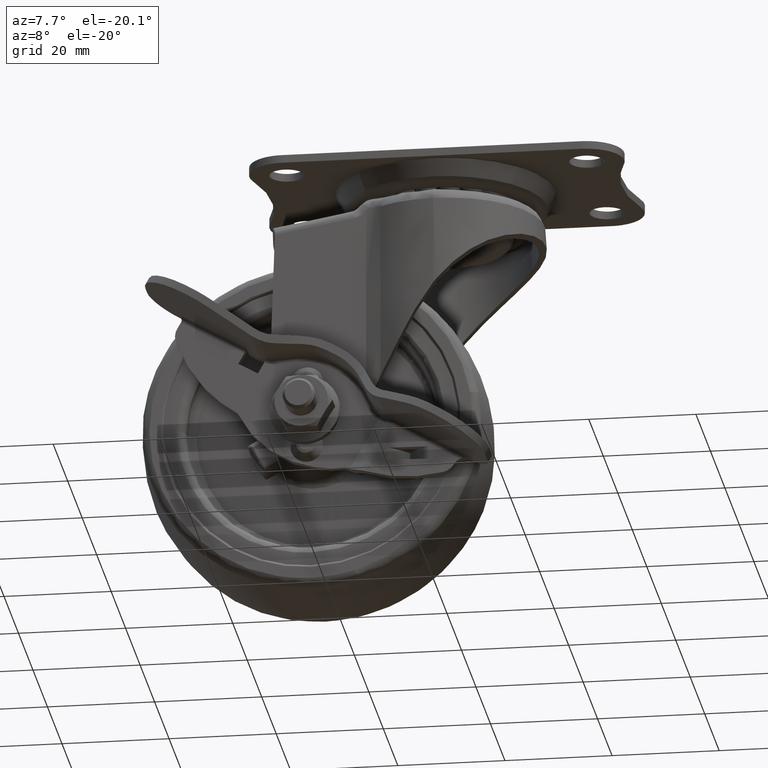
[diagram: clean part render]
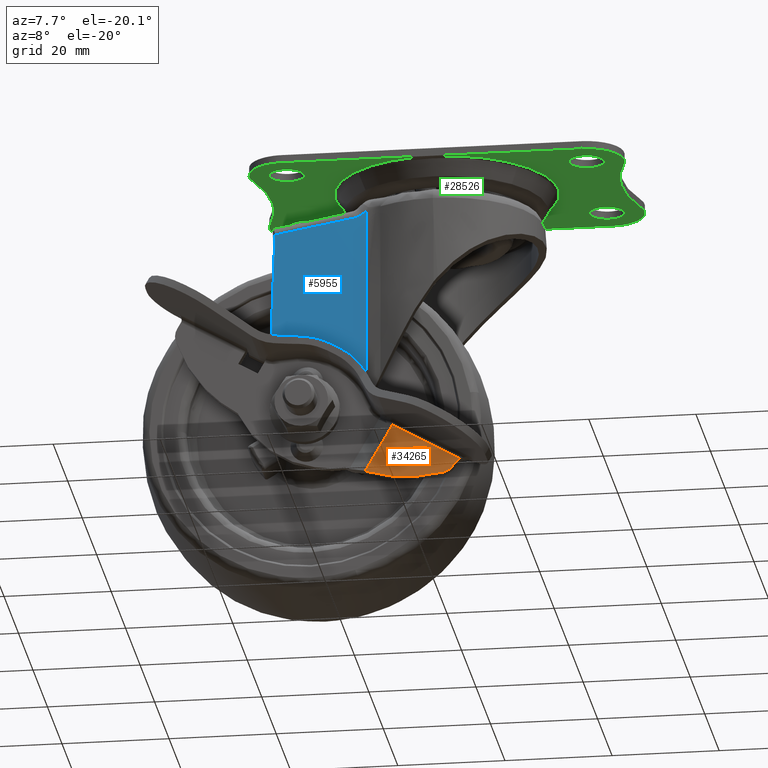
[diagram: same view with three faces highlighted in distinct colors, each labeled with its STEP entity id]
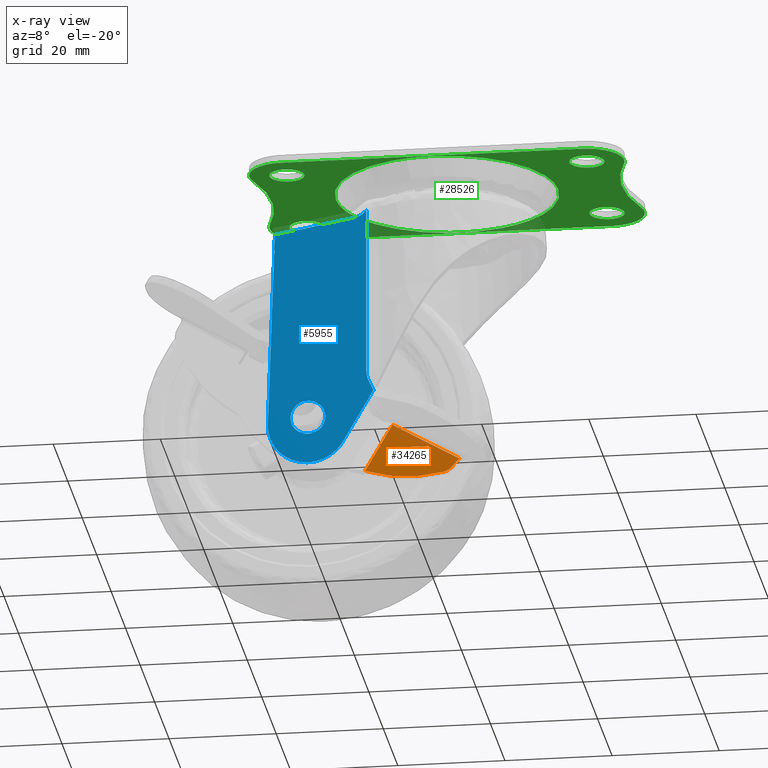
[diagram: x-ray of the same camera — body ghosted, the three highlighted faces saturated]
A machine part, auxiliary view with three faces highlighted in distinct colors.
The next image is the same camera in x-ray (body ghosted, the three faces saturated) — at least one of them is partly hidden behind the body in this view.
Their STEP definitions:

[orange] entity #34265 — the highlighted face is a freeform B-spline surface patch.
#31590=CARTESIAN_POINT('',(-3.760554572550980,-18.200001000000050,-37.886882688781149));
#31591=VERTEX_POINT('',#31590);
#31602=CARTESIAN_POINT('',(-2.585290771482475,-18.200001000000050,-39.979433434913901));
#31603=VERTEX_POINT('',#31602);
#31604=CARTESIAN_POINT('',(-2.585290771482475,-18.200001000000050,-39.979433434913901));
#31605=CARTESIAN_POINT('',(-3.760554572550980,-18.200001000000050,-37.886882688781149));
#31606=QUASI_UNIFORM_CURVE('',1,(#31604,#31605),.UNSPECIFIED.,.F.,.U.);
#31607=EDGE_CURVE('',#31603,#31591,#31606,.T.);
#31643=CARTESIAN_POINT('',(3.110047271129015,-18.200001000000050,-34.028066049158546));
#31644=VERTEX_POINT('',#31643);
#31660=CARTESIAN_POINT('',(4.285310611342440,-18.200001000000050,-36.120615974741447));
#31661=VERTEX_POINT('',#31660);
#31670=CARTESIAN_POINT('',(3.110047271129015,-18.200001000000050,-34.028066049158546));
#31671=CARTESIAN_POINT('',(4.285310611342440,-18.200001000000050,-36.120615974741447));
#31672=QUASI_UNIFORM_CURVE('',1,(#31670,#31671),.UNSPECIFIED.,.F.,.U.);
#31673=EDGE_CURVE('',#31644,#31661,#31672,.T.);
#31784=CARTESIAN_POINT('',(-5.099997016335720,-18.200001000000050,-33.500016200391762));
#31785=VERTEX_POINT('',#31784);
#31841=CARTESIAN_POINT('',(-5.099997016335720,-18.200001000000050,-43.723593691209487));
#31842=VERTEX_POINT('',#31841);
#31853=CARTESIAN_POINT('',(-5.099997016335720,-18.200001000000050,-33.500016200391762));
#31854=CARTESIAN_POINT('',(-5.099997016335720,-18.200001000000050,-43.723593691209487));
#31855=QUASI_UNIFORM_CURVE('',1,(#31853,#31854),.UNSPECIFIED.,.F.,.U.);
#31856=EDGE_CURVE('',#31785,#31842,#31855,.T.);
#31949=CARTESIAN_POINT('',(9.500011608893679,-18.200000999999951,-33.500043960416249));
#31950=VERTEX_POINT('',#31949);
#31951=CARTESIAN_POINT('',(9.500011608893679,-18.200000999999951,-33.500043960416249));
#31952=CARTESIAN_POINT('',(-5.099997016335720,-18.200001000000050,-33.500016200391762));
#31953=QUASI_UNIFORM_CURVE('',1,(#31951,#31952),.UNSPECIFIED.,.F.,.U.);
#31954=EDGE_CURVE('',#31950,#31785,#31953,.T.);
#32862=CARTESIAN_POINT('',(9.000099699842162,-18.200001000000050,-34.978723908718749));
#32863=VERTEX_POINT('',#32862);
#32864=CARTESIAN_POINT('',(9.000099699842162,-18.200001000000050,-34.978723908718749));
#32865=CARTESIAN_POINT('',(9.001881380710193,-18.200001000000011,-34.763765464275430));
#32866=CARTESIAN_POINT('',(9.075090063611201,-18.200000999999919,-34.235234355348801));
#32867=CARTESIAN_POINT('',(9.311214726225023,-18.200000999999929,-33.751240275202257));
#32868=CARTESIAN_POINT('',(9.500011608893679,-18.200000999999951,-33.500043960416249));
#32869=B_SPLINE_CURVE_WITH_KNOTS('',3,(#32864,#32865,#32866,#32867,#32868),.UNSPECIFIED.,.F.,.U.,(4,1,4),(0.000000038030307,0.644908400968077,1.587459451626553),.UNSPECIFIED.);
#32870=EDGE_CURVE('',#32863,#31950,#32869,.T.);
#33532=CARTESIAN_POINT('',(8.018981607633881,-18.200001000000050,-37.172269456478951));
#33533=VERTEX_POINT('',#33532);
#33539=CARTESIAN_POINT('',(-5.099997016335720,-18.200001000000050,-43.723593691209487));
#33540=CARTESIAN_POINT('',(-4.112255990179443,-18.200001000000071,-43.535533027594042));
#33541=CARTESIAN_POINT('',(-1.631563796275703,-18.200001000000061,-42.918022641952668));
#33542=CARTESIAN_POINT('',(1.748905572819824,-18.200001000000121,-41.545046553451577));
#33543=CARTESIAN_POINT('',(5.154651901472310,-18.200001000000078,-39.540696212099057));
#33544=CARTESIAN_POINT('',(7.046402674110341,-18.200001000000078,-38.057133756000127));
#33545=CARTESIAN_POINT('',(8.018981607633881,-18.200001000000050,-37.172269456478951));
#33546=B_SPLINE_CURVE_WITH_KNOTS('',3,(#33539,#33540,#33541,#33542,#33543,#33544,#33545),.UNSPECIFIED.,.F.,.U.,(4,1,1,1,4),(4.931676E-009,3.016472451849115,7.657200474243243,10.905715521691510,14.850336306112579),.UNSPECIFIED.);
#33547=EDGE_CURVE('',#31842,#33533,#33546,.T.);
#33600=CARTESIAN_POINT('',(8.018981607633881,-18.200001000000050,-37.172269456478951));
#33601=CARTESIAN_POINT('',(8.266803752465545,-18.200001000000061,-36.947111580387350));
#33602=CARTESIAN_POINT('',(8.605005679874410,-18.200001000000089,-36.515432134636377));
#33603=CARTESIAN_POINT('',(8.923662425377994,-18.200001000000121,-35.750650303717457));
#33604=CARTESIAN_POINT('',(8.997792402454531,-18.200001000000061,-35.262015585171177));
#33605=CARTESIAN_POINT('',(9.000099699842162,-18.200001000000050,-34.978723908718749));
#33606=B_SPLINE_CURVE_WITH_KNOTS('',3,(#33600,#33601,#33602,#33603,#33604,#33605),.UNSPECIFIED.,.F.,.U.,(4,1,1,4),(0.000000041465652,1.004425111143239,1.622505027469119,2.472403478058530),.UNSPECIFIED.);
#33607=EDGE_CURVE('',#33533,#32863,#33606,.T.);
#34239=CARTESIAN_POINT('',(-5.829267555922717,-18.200000999999951,-44.234262459274298));
#34240=CARTESIAN_POINT('',(10.229282409549169,-18.200000999999951,-44.234262459274291));
#34241=CARTESIAN_POINT('',(-5.829267555922717,-18.200000999999951,-32.989347432326952));
#34242=CARTESIAN_POINT('',(10.229282409549169,-18.200000999999951,-32.989347432326952));
#34243=B_SPLINE_SURFACE_WITH_KNOTS('',1,1,((#34239,#34241),(#34240,#34242)),.UNSPECIFIED.,.F.,.F.,.U.,(2,2),(2,2),(0.0,16.058549965471890),(0.0,11.244915026947350),.UNSPECIFIED.);
#34244=ORIENTED_EDGE('',*,*,#31954,.T.);
#34245=ORIENTED_EDGE('',*,*,#31856,.T.);
#34246=ORIENTED_EDGE('',*,*,#33547,.T.);
#34247=ORIENTED_EDGE('',*,*,#33607,.T.);
#34248=ORIENTED_EDGE('',*,*,#32870,.T.);
#34249=EDGE_LOOP('',(#34244,#34245,#34246,#34247,#34248));
#34250=FACE_OUTER_BOUND('',#34249,.T.);
#34251=CARTESIAN_POINT('',(4.285310611342440,-18.200001000000050,-36.120615974741447));
#34252=CARTESIAN_POINT('',(-2.585290771482475,-18.200001000000050,-39.979433434913901));
#34253=QUASI_UNIFORM_CURVE('',1,(#34251,#34252),.UNSPECIFIED.,.F.,.U.);
#34254=EDGE_CURVE('',#31661,#31603,#34253,.T.);
#34255=ORIENTED_EDGE('',*,*,#34254,.T.);
#34256=ORIENTED_EDGE('',*,*,#31607,.T.);
#34257=CARTESIAN_POINT('',(-3.760554572550980,-18.200001000000050,-37.886882688781149));
#34258=CARTESIAN_POINT('',(3.110047271129015,-18.200001000000050,-34.028066049158546));
#34259=QUASI_UNIFORM_CURVE('',1,(#34257,#34258),.UNSPECIFIED.,.F.,.U.);
#34260=EDGE_CURVE('',#31591,#31644,#34259,.T.);
#34261=ORIENTED_EDGE('',*,*,#34260,.T.);
#34262=ORIENTED_EDGE('',*,*,#31673,.T.);
#34263=EDGE_LOOP('',(#34255,#34256,#34261,#34262));
#34264=FACE_BOUND('',#34263,.T.);
#34265=ADVANCED_FACE('',(#34250,#34264),#34243,.T.);

[blue] entity #5955 — the highlighted face is a freeform B-spline surface patch.
#957=CARTESIAN_POINT('',(-26.481556282979462,-14.500014999999980,-50.098657886526567));
#958=VERTEX_POINT('',#957);
#964=CARTESIAN_POINT('',(-24.0,-14.500014999999980,-51.249996000000003));
#965=VERTEX_POINT('',#964);
#966=CARTESIAN_POINT('',(-26.481556282979462,-14.500014999999980,-50.098657886526567));
#967=CARTESIAN_POINT('',(-26.320154426087701,-14.500014999999980,-50.289590358454717));
#968=CARTESIAN_POINT('',(-25.963778621621010,-14.500014999999991,-50.623748461309610));
#969=CARTESIAN_POINT('',(-25.363702867746671,-14.500014999999950,-50.974916260311247));
#970=CARTESIAN_POINT('',(-24.705887258085131,-14.500015000000070,-51.197121211428289));
#971=CARTESIAN_POINT('',(-24.250012487659660,-14.500014999999950,-51.250049129720679));
#972=CARTESIAN_POINT('',(-24.0,-14.500014999999980,-51.249996000000003));
#973=B_SPLINE_CURVE_WITH_KNOTS('',3,(#966,#967,#968,#969,#970,#971,#972),.UNSPECIFIED.,.F.,.U.,(4,1,1,1,4),(0.000000054430266,0.750026367810561,1.455906118027910,2.073600946871237,2.823627260252643),.UNSPECIFIED.);
#974=EDGE_CURVE('',#958,#965,#973,.T.);
#976=CARTESIAN_POINT('',(-20.750000000000650,-14.500014999999980,-47.999993940924647));
#977=VERTEX_POINT('',#976);
#978=CARTESIAN_POINT('',(-24.0,-14.500014999999980,-51.249996000000003));
#979=CARTESIAN_POINT('',(-23.654317310903071,-14.500014999999969,-51.250181567235160));
#980=CARTESIAN_POINT('',(-23.149252670513778,-14.500015000000010,-51.168624221916723));
#981=CARTESIAN_POINT('',(-22.484196317878428,-14.500014999999980,-50.893076814369977));
#982=CARTESIAN_POINT('',(-21.987597435861300,-14.500014999999969,-50.578639095731042));
#983=CARTESIAN_POINT('',(-21.523209675265619,-14.500014999999999,-50.136497120728947));
#984=CARTESIAN_POINT('',(-21.153993051802381,-14.500014999999991,-49.612249615428837));
#985=CARTESIAN_POINT('',(-20.839955919817999,-14.500014999999941,-48.903916845198239));
#986=CARTESIAN_POINT('',(-20.749810958580401,-14.500015000000040,-48.345675169019437));
#987=CARTESIAN_POINT('',(-20.750000000000650,-14.500014999999980,-47.999993940924647));
#988=B_SPLINE_CURVE_WITH_KNOTS('',3,(#978,#979,#980,#981,#982,#983,#984,#985,#986,#987),.UNSPECIFIED.,.F.,.U.,(4,1,1,1,1,1,1,4),(0.000000087007408,1.036990390061083,1.515618405325739,2.153791847225644,2.791894887794724,3.430051775340033,4.068227027378323,5.105217329646182),.UNSPECIFIED.);
#989=EDGE_CURVE('',#965,#977,#988,.T.);
#991=CARTESIAN_POINT('',(-24.0,-14.500014999999980,-44.749996000000003));
#992=VERTEX_POINT('',#991);
#993=CARTESIAN_POINT('',(-20.750000000000650,-14.500014999999980,-47.999993940924647));
#994=CARTESIAN_POINT('',(-20.749816144876579,-14.500014999999991,-47.654311261816282));
#995=CARTESIAN_POINT('',(-20.831367591349991,-14.500014999999980,-47.149247552117757));
#996=CARTESIAN_POINT('',(-21.106922344042530,-14.500014999999980,-46.484192228192242));
#997=CARTESIAN_POINT('',(-21.449918194975819,-14.500014999999969,-45.942430177033792));
#998=CARTESIAN_POINT('',(-21.942427339657382,-14.500014999999980,-45.449903996963599));
#999=CARTESIAN_POINT('',(-22.484200371084249,-14.500014999999969,-45.106918996288989));
#1000=CARTESIAN_POINT('',(-23.149252329922920,-14.500015000000030,-44.831365175613627));
#1001=CARTESIAN_POINT('',(-23.654317598750659,-14.500014999999911,-44.749810783598562));
#1002=CARTESIAN_POINT('',(-24.0,-14.500014999999980,-44.749996000000003));
#1003=B_SPLINE_CURVE_WITH_KNOTS('',3,(#993,#994,#995,#996,#997,#998,#999,#1000,#1001,#1002),.UNSPECIFIED.,.F.,.U.,(4,1,1,1,1,1,1,4),(0.000000089823271,1.036989920741094,1.515617718207091,2.153790871378807,2.951424228293317,3.589597379243464,4.068225176827021,5.105215008530512),.UNSPECIFIED.);
#1004=EDGE_CURVE('',#977,#992,#1003,.T.);
#1006=CARTESIAN_POINT('',(-26.237152122917330,-14.500014999999980,-45.642529767471018));
#1007=VERTEX_POINT('',#1006);
#1008=CARTESIAN_POINT('',(-24.0,-14.500014999999980,-44.749996000000003));
#1009=CARTESIAN_POINT('',(-24.282738987557750,-14.500015000000010,-44.749909579737128));
#1010=CARTESIAN_POINT('',(-24.771042234328831,-14.500014999999960,-44.814146022829512));
#1011=CARTESIAN_POINT('',(-25.545490132232182,-14.500014999999999,-45.101984316922383));
#1012=CARTESIAN_POINT('',(-25.994875320110879,-14.500014999999980,-45.412387990954549));
#1013=CARTESIAN_POINT('',(-26.237152122917330,-14.500014999999980,-45.642529767471018));
#1014=B_SPLINE_CURVE_WITH_KNOTS('',3,(#1008,#1009,#1010,#1011,#1012,#1013),.UNSPECIFIED.,.F.,.U.,(4,1,1,4),(0.000000029991697,0.848217283191369,1.465078735277704,2.467517040331371),.UNSPECIFIED.);
#1015=EDGE_CURVE('',#992,#1007,#1014,.T.);
#1100=CARTESIAN_POINT('',(-27.249999999999350,-14.500014999999980,-47.999998059075352));
#1101=VERTEX_POINT('',#1100);
#1102=CARTESIAN_POINT('',(-26.237152122917330,-14.500014999999980,-45.642529767471018));
#1103=CARTESIAN_POINT('',(-26.536455061760510,-14.500014999999980,-45.925966070307972));
#1104=CARTESIAN_POINT('',(-26.877854871078750,-14.500014999999980,-46.403932006178991));
#1105=CARTESIAN_POINT('',(-27.184340524074340,-14.500014999999980,-47.230755634806918));
#1106=CARTESIAN_POINT('',(-27.250110224429989,-14.500014999999980,-47.697754378889648));
#1107=CARTESIAN_POINT('',(-27.249999999999350,-14.500014999999980,-47.999998059075352));
#1108=B_SPLINE_CURVE_WITH_KNOTS('',3,(#1102,#1103,#1104,#1105,#1106,#1107),.UNSPECIFIED.,.F.,.U.,(4,1,1,4),(0.000000023110423,1.236422972832260,1.730991075560883,2.637701209817986),.UNSPECIFIED.);
#1109=EDGE_CURVE('',#1007,#1101,#1108,.T.);
#1111=CARTESIAN_POINT('',(-27.249999999999350,-14.500014999999980,-47.999998059075352));
#1112=CARTESIAN_POINT('',(-27.250022193682110,-14.500015000000010,-48.213887924088027));
#1113=CARTESIAN_POINT('',(-27.205277126840279,-14.500014999999960,-48.665420440297780));
#1114=CARTESIAN_POINT('',(-26.974042200133400,-14.500014999999999,-49.394721125264702));
#1115=CARTESIAN_POINT('',(-26.681142727658351,-14.500015000000010,-49.862813449055402));
#1116=CARTESIAN_POINT('',(-26.481556282979462,-14.500014999999980,-50.098657886526567));
#1117=B_SPLINE_CURVE_WITH_KNOTS('',3,(#1111,#1112,#1113,#1114,#1115,#1116),.UNSPECIFIED.,.F.,.U.,(4,1,1,4),(0.000000032594063,0.641680271935226,1.354643086648391,2.281526560046827),.UNSPECIFIED.);
#1118=EDGE_CURVE('',#1101,#958,#1117,.T.);
#3343=CARTESIAN_POINT('',(-11.764897919061660,-14.500014999999960,-43.230867202212352));
#3344=VERTEX_POINT('',#3343);
#3377=CARTESIAN_POINT('',(-13.114845407450700,-14.500014999999960,-7.772795096158631));
#3378=VERTEX_POINT('',#3377);
#3387=CARTESIAN_POINT('',(-11.764897919061660,-14.500014999999960,-43.230867202212352));
#3388=CARTESIAN_POINT('',(-12.498000517984250,-14.500014999999960,-41.887876217250103));
#3389=CARTESIAN_POINT('',(-12.796686992577699,-14.500014999999960,-41.014267411885072));
#3390=CARTESIAN_POINT('',(-12.997251107979700,-14.500014999999960,-40.427650366389962));
#3391=CARTESIAN_POINT('',(-13.068918839977350,-14.500014999999960,-39.906218334693989));
#3392=CARTESIAN_POINT('',(-13.114845407450700,-14.500014999999960,-39.572070975499983));
#3393=CARTESIAN_POINT('',(-13.114845407450700,-14.500014999999960,-38.798169257503012));
#3394=CARTESIAN_POINT('',(-13.114845407450700,-14.500014999999960,-36.582071103121059));
#3395=CARTESIAN_POINT('',(-13.114845407450700,-14.500014999999960,-34.365972948739113));
#3396=CARTESIAN_POINT('',(-13.114845407450700,-14.500014999999960,-29.933776639975989));
#3397=CARTESIAN_POINT('',(-13.114845407450700,-14.500014999999960,-25.501580331212971));
#3398=CARTESIAN_POINT('',(-13.114845407450700,-14.500014999999960,-16.637187713686050));
#3399=CARTESIAN_POINT('',(-13.114845407450700,-14.500014999999960,-7.772795096158631));
#3400=B_SPLINE_CURVE_WITH_KNOTS('',2,(#3387,#3388,#3389,#3390,#3391,#3392,#3393,#3394,#3395,#3396,#3397,#3398,#3399),.UNSPECIFIED.,.F.,.U.,(3,2,2,2,2,2,3),(0.0,0.062500000000000,0.093750000000000,0.125000000000000,0.250000000000000,0.500000000000000,1.0),.UNSPECIFIED.);
#3401=EDGE_CURVE('',#3344,#3378,#3400,.T.);
#3887=CARTESIAN_POINT('',(-15.450099921824849,-14.500014999999960,-9.175366209909820));
#3888=VERTEX_POINT('',#3887);
#3933=CARTESIAN_POINT('',(-30.168149422949352,-14.500014999999999,-11.770554114201261));
#3934=VERTEX_POINT('',#3933);
#3942=CARTESIAN_POINT('',(-15.450099921824849,-14.500014999999960,-9.175366209909820));
#3943=CARTESIAN_POINT('',(-30.168149422949352,-14.500014999999999,-11.770554114201261));
#3944=QUASI_UNIFORM_CURVE('',1,(#3942,#3943),.UNSPECIFIED.,.F.,.U.);
#3945=EDGE_CURVE('',#3888,#3934,#3944,.T.);
#4008=CARTESIAN_POINT('',(-13.444378099345860,-14.500014999999960,-8.120697380074811));
#4009=VERTEX_POINT('',#4008);
#4034=CARTESIAN_POINT('',(-13.444378099345860,-14.500014999999960,-8.120697380074800));
#4035=CARTESIAN_POINT('',(-13.577538275317741,-14.500014999999960,-8.261655065152787));
#4036=CARTESIAN_POINT('',(-13.721810046412710,-14.500014999999960,-8.388276476710161));
#4037=CARTESIAN_POINT('',(-13.952577617743060,-14.500014999999960,-8.559681311291788));
#4038=CARTESIAN_POINT('',(-14.031920859920669,-14.500014999999960,-8.613693024903693));
#4039=CARTESIAN_POINT('',(-14.195333000297721,-14.500014999999969,-8.715619370966547));
#4040=CARTESIAN_POINT('',(-14.279730269917451,-14.500014999999960,-8.763682929964197));
#4041=CARTESIAN_POINT('',(-14.536187889577260,-14.500014999999960,-8.896791213018165));
#4042=CARTESIAN_POINT('',(-14.712199930313650,-14.500014999999960,-8.971436871829113));
#4043=CARTESIAN_POINT('',(-15.073813551437739,-14.500014999999960,-9.093914821171241));
#4044=CARTESIAN_POINT('',(-15.259416394751060,-14.500014999999960,-9.141743580428710));
#4045=CARTESIAN_POINT('',(-15.450099921824849,-14.500014999999960,-9.175366209909820));
#4046=B_SPLINE_CURVE_WITH_KNOTS('',3,(#4034,#4035,#4036,#4037,#4038,#4039,#4040,#4041,#4042,#4043,#4044,#4045),.UNSPECIFIED.,.F.,.U.,(4,2,2,2,2,4),(0.0,0.249999999999999,0.374999999999998,0.499999999999998,0.749999999999999,1.0),.UNSPECIFIED.);
#4047=EDGE_CURVE('',#4009,#3888,#4046,.T.);
#4100=CARTESIAN_POINT('',(-13.114845407450700,-14.500014999999960,-7.772795096158631));
#4101=CARTESIAN_POINT('',(-13.444378099345860,-14.500014999999960,-8.120697380074811));
#4102=QUASI_UNIFORM_CURVE('',1,(#4100,#4101),.UNSPECIFIED.,.F.,.U.);
#4103=EDGE_CURVE('',#3378,#4009,#4102,.T.);
#5573=CARTESIAN_POINT('',(-30.655919629697049,-14.500014999999999,-25.503042144820650));
#5574=VERTEX_POINT('',#5573);
#5582=CARTESIAN_POINT('',(-30.168149422949352,-14.500014999999999,-11.770554114201261));
#5583=CARTESIAN_POINT('',(-30.655919629697049,-14.500014999999999,-25.503042144820650));
#5584=QUASI_UNIFORM_CURVE('',1,(#5582,#5583),.UNSPECIFIED.,.F.,.U.);
#5585=EDGE_CURVE('',#3934,#5574,#5584,.T.);
#5597=CARTESIAN_POINT('',(-31.495273444506651,-14.500014999999980,-49.133772546533599));
#5598=VERTEX_POINT('',#5597);
#5604=CARTESIAN_POINT('',(-31.495273444506651,-14.500014999999980,-49.133772546533599));
#5605=CARTESIAN_POINT('',(-30.655919629697049,-14.500014999999999,-25.503042144820650));
#5606=QUASI_UNIFORM_CURVE('',1,(#5604,#5605),.UNSPECIFIED.,.F.,.U.);
#5607=EDGE_CURVE('',#5598,#5574,#5606,.T.);
#5631=CARTESIAN_POINT('',(-17.508530000000000,-14.500014999999980,-53.156421999999900));
#5632=VERTEX_POINT('',#5631);
#5638=CARTESIAN_POINT('',(-31.495273444506651,-14.500014999999980,-49.133772546533599));
#5639=CARTESIAN_POINT('',(-31.516526762908239,-14.500014999999991,-49.729171122618801));
#5640=CARTESIAN_POINT('',(-31.411816223449360,-14.500014999999980,-50.977025731513031));
#5641=CARTESIAN_POINT('',(-30.874983789924510,-14.500014999999930,-52.532611634222711));
#5642=CARTESIAN_POINT('',(-30.207378661966811,-14.500014999999999,-53.647071242222232));
#5643=CARTESIAN_POINT('',(-29.483443755917879,-14.500015000000030,-54.562669686190972));
#5644=CARTESIAN_POINT('',(-28.431896029399510,-14.500014999999911,-55.535292122472853));
#5645=CARTESIAN_POINT('',(-26.952730111761351,-14.500015000000079,-56.368831997620788));
#5646=CARTESIAN_POINT('',(-25.400926833545540,-14.500015000000079,-56.814978445087640));
#5647=CARTESIAN_POINT('',(-23.924505952746390,-14.500014999999941,-56.945773920667790));
#5648=CARTESIAN_POINT('',(-22.292485806831841,-14.500015000000030,-56.776731172832868));
#5649=CARTESIAN_POINT('',(-20.740902390223422,-14.500014999999900,-56.225040202859660));
#5650=CARTESIAN_POINT('',(-19.510621672867831,-14.500015000000101,-55.445852557233408));
#5651=CARTESIAN_POINT('',(-18.436907104593210,-14.500014999999800,-54.504524961598733));
#5652=CARTESIAN_POINT('',(-17.832704310828760,-14.500015000000269,-53.717049543102817));
#5653=CARTESIAN_POINT('',(-17.508530000000000,-14.500014999999980,-53.156421999999900));
#5654=B_SPLINE_CURVE_WITH_KNOTS('',3,(#5638,#5639,#5640,#5641,#5642,#5643,#5644,#5645,#5646,#5647,#5648,#5649,#5650,#5651,#5652,#5653),.UNSPECIFIED.,.F.,.U.,(4,1,1,1,1,1,1,1,1,1,1,1,1,4),(0.000000317317522,1.787336795637835,3.730106194921387,4.895765357087813,5.672876977997552,7.227099398005390,9.169915391078970,10.723983290883060,12.045129718919121,13.599340933154730,15.619831194081939,16.940913000130578,17.951155109491310,19.893896527020519),.UNSPECIFIED.);
#5655=EDGE_CURVE('',#5598,#5632,#5654,.T.);
#5928=CARTESIAN_POINT('',(-32.480805778485220,-14.500014999999960,-5.318932147878094));
#5929=CARTESIAN_POINT('',(-32.480805778485220,-14.500014999999960,-59.353046619308472));
#5930=CARTESIAN_POINT('',(-10.779366643502909,-14.500014999999960,-5.318932147878094));
#5931=CARTESIAN_POINT('',(-10.779366643502909,-14.500014999999960,-59.353046619308472));
#5932=B_SPLINE_SURFACE_WITH_KNOTS('',1,1,((#5928,#5930),(#5929,#5931)),.UNSPECIFIED.,.F.,.F.,.U.,(2,2),(2,2),(0.0,54.034114471430371),(0.0,21.701439134982309),.UNSPECIFIED.);
#5933=CARTESIAN_POINT('',(-11.764897919061660,-14.500014999999960,-43.230867202212352));
#5934=CARTESIAN_POINT('',(-17.508530000000000,-14.500014999999980,-53.156421999999900));
#5935=QUASI_UNIFORM_CURVE('',1,(#5933,#5934),.UNSPECIFIED.,.F.,.U.);
#5936=EDGE_CURVE('',#3344,#5632,#5935,.T.);
#5937=ORIENTED_EDGE('',*,*,#5936,.F.);
#5938=ORIENTED_EDGE('',*,*,#3401,.T.);
#5939=ORIENTED_EDGE('',*,*,#4103,.T.);
#5940=ORIENTED_EDGE('',*,*,#4047,.T.);
#5941=ORIENTED_EDGE('',*,*,#3945,.T.);
#5942=ORIENTED_EDGE('',*,*,#5585,.T.);
#5943=ORIENTED_EDGE('',*,*,#5607,.F.);
#5944=ORIENTED_EDGE('',*,*,#5655,.T.);
#5945=EDGE_LOOP('',(#5937,#5938,#5939,#5940,#5941,#5942,#5943,#5944));
#5946=FACE_OUTER_BOUND('',#5945,.T.);
#5947=ORIENTED_EDGE('',*,*,#989,.F.);
#5948=ORIENTED_EDGE('',*,*,#974,.F.);
#5949=ORIENTED_EDGE('',*,*,#1118,.F.);
#5950=ORIENTED_EDGE('',*,*,#1109,.F.);
#5951=ORIENTED_EDGE('',*,*,#1015,.F.);
#5952=ORIENTED_EDGE('',*,*,#1004,.F.);
#5953=EDGE_LOOP('',(#5947,#5948,#5949,#5950,#5951,#5952));
#5954=FACE_BOUND('',#5953,.T.);
#5955=ADVANCED_FACE('',(#5946,#5954),#5932,.T.);

[green] entity #28526 — the highlighted face is a freeform B-spline surface patch.
#21823=CARTESIAN_POINT('',(-30.098661756561071,16.481556130959309,-3.385563E-011));
#21824=VERTEX_POINT('',#21823);
#21825=CARTESIAN_POINT('',(-31.249999800000001,14.0,0.0));
#21826=VERTEX_POINT('',#21825);
#21827=CARTESIAN_POINT('',(-30.098661756561071,16.481556130959309,-3.385563E-011));
#21828=CARTESIAN_POINT('',(-30.289575070038399,16.320144193689671,-3.165350E-011));
#21829=CARTESIAN_POINT('',(-30.674464882642411,15.909821605328609,-2.605551E-011));
#21830=CARTESIAN_POINT('',(-31.126613348684192,15.073434524501209,-1.464476E-011));
#21831=CARTESIAN_POINT('',(-31.250261647266630,14.382388011248640,-5.216883E-012));
#21832=CARTESIAN_POINT('',(-31.249999800000001,14.0,0.0));
#21833=B_SPLINE_CURVE_WITH_KNOTS('',3,(#21827,#21828,#21829,#21830,#21831,#21832),.UNSPECIFIED.,.F.,.U.,(4,1,1,4),(0.000000054425803,0.750026321936239,1.676517445390193,2.823627087561114),.UNSPECIFIED.);
#21834=EDGE_CURVE('',#21824,#21826,#21833,.T.);
#21895=CARTESIAN_POINT('',(-25.642533913733349,16.237151986497789,1.696325E-011));
#21896=VERTEX_POINT('',#21895);
#21902=CARTESIAN_POINT('',(-24.750000199999999,14.0,0.0));
#21903=VERTEX_POINT('',#21902);
#21904=CARTESIAN_POINT('',(-24.750000199999999,14.0,0.0));
#21905=CARTESIAN_POINT('',(-24.749908724318448,14.282743271637200,2.143907E-012));
#21906=CARTESIAN_POINT('',(-24.807411034701978,14.719628276015140,5.456596E-012));
#21907=CARTESIAN_POINT('',(-25.076228163753239,15.499185421873941,1.136760E-011));
#21908=CARTESIAN_POINT('',(-25.376877605744561,15.957663594679561,1.484402E-011));
#21909=CARTESIAN_POINT('',(-25.642533913733349,16.237151986497789,1.696325E-011));
#21910=B_SPLINE_CURVE_WITH_KNOTS('',3,(#21904,#21905,#21906,#21907,#21908,#21909),.UNSPECIFIED.,.F.,.U.,(4,1,1,4),(0.000000029990643,0.848217231585917,1.310863447302272,2.467516890209405),.UNSPECIFIED.);
#21911=EDGE_CURVE('',#21903,#21896,#21910,.T.);
#21913=CARTESIAN_POINT('',(-27.999997940924779,10.750000200000651,0.0));
#21914=VERTEX_POINT('',#21913);
#21915=CARTESIAN_POINT('',(-27.999997940924779,10.750000200000651,0.0));
#21916=CARTESIAN_POINT('',(-27.654316297015239,10.749811396389889,0.0));
#21917=CARTESIAN_POINT('',(-27.096075449333551,10.839956532808021,0.0));
#21918=CARTESIAN_POINT('',(-26.387743144435149,11.153993051849030,0.0));
#21919=CARTESIAN_POINT('',(-25.863496102247691,11.523209799547359,0.0));
#21920=CARTESIAN_POINT('',(-25.421354080932641,11.987597984934119,0.0));
#21921=CARTESIAN_POINT('',(-25.106918248590979,12.484195756553691,0.0));
#21922=CARTESIAN_POINT('',(-24.831369752554721,13.149255115057841,0.0));
#21923=CARTESIAN_POINT('',(-24.749815337546430,13.654316186226330,0.0));
#21924=CARTESIAN_POINT('',(-24.750000199999999,14.0,0.0));
#21925=B_SPLINE_CURVE_WITH_KNOTS('',3,(#21915,#21916,#21917,#21918,#21919,#21920,#21921,#21922,#21923,#21924),.UNSPECIFIED.,.F.,.U.,(4,1,1,1,1,1,1,4),(0.000000089825204,1.036989856927361,1.675164779641794,2.313321336359128,2.951424046667823,3.589597158345651,4.068224926475018,5.105214694363415),.UNSPECIFIED.);
#21926=EDGE_CURVE('',#21914,#21903,#21925,.T.);
#21928=CARTESIAN_POINT('',(-31.249999800000001,14.0,0.0));
#21929=CARTESIAN_POINT('',(-31.250213411659860,13.654312593257410,0.0));
#21930=CARTESIAN_POINT('',(-31.168603753212881,13.149258355041161,0.0));
#21931=CARTESIAN_POINT('',(-30.893084863574050,12.484194795442169,0.0));
#21932=CARTESIAN_POINT('',(-30.578644659373520,11.987597425052529,0.0));
#21933=CARTESIAN_POINT('',(-30.136500792960518,11.523210283037390,0.0));
#21934=CARTESIAN_POINT('',(-29.612253616706070,11.153992291692401,0.0));
#21935=CARTESIAN_POINT('',(-28.903921136315351,10.839957306355981,0.0));
#21936=CARTESIAN_POINT('',(-28.345678394126999,10.749810213535600,0.0));
#21937=CARTESIAN_POINT('',(-27.999997940924779,10.750000200000651,0.0));
#21938=B_SPLINE_CURVE_WITH_KNOTS('',3,(#21928,#21929,#21930,#21931,#21932,#21933,#21934,#21935,#21936,#21937),.UNSPECIFIED.,.F.,.U.,(4,1,1,1,1,1,1,4),(0.000000087005333,1.036990326245083,1.515618312055995,2.153791714684053,2.791894715985495,3.430051564259903,4.068226777025982,5.105217015478970),.UNSPECIFIED.);
#21939=EDGE_CURVE('',#21826,#21914,#21938,.T.);
#21958=CARTESIAN_POINT('',(-28.000002059075200,17.249999799999340,0.0));
#21959=VERTEX_POINT('',#21958);
#21960=CARTESIAN_POINT('',(-28.000002059075200,17.249999799999340,0.0));
#21961=CARTESIAN_POINT('',(-28.404062435999489,17.250354327009479,-6.518311E-012));
#21962=CARTESIAN_POINT('',(-29.164243231566491,17.106216488580291,-1.878157E-011));
#21963=CARTESIAN_POINT('',(-29.826586633628239,16.711934384757921,-2.946651E-011));
#21964=CARTESIAN_POINT('',(-30.098661756561071,16.481556130959309,-3.385563E-011));
#21965=B_SPLINE_CURVE_WITH_KNOTS('',3,(#21960,#21961,#21962,#21963,#21964),.UNSPECIFIED.,.F.,.U.,(4,1,4),(0.000000032594634,1.212052249070433,2.281526418575037),.UNSPECIFIED.);
#21966=EDGE_CURVE('',#21959,#21824,#21965,.T.);
#21968=CARTESIAN_POINT('',(-25.642533913733349,16.237151986497789,1.696325E-011));
#21969=CARTESIAN_POINT('',(-25.812715551386152,16.416557821205579,1.573870E-011));
#21970=CARTESIAN_POINT('',(-26.173112050005120,16.718425575377690,1.314546E-011));
#21971=CARTESIAN_POINT('',(-26.956197697829911,17.128107008561891,7.510735E-012));
#21972=CARTESIAN_POINT('',(-27.587795409102441,17.250424463961892,2.966049E-012));
#21973=CARTESIAN_POINT('',(-28.000002059075200,17.249999799999340,0.0));
#21974=B_SPLINE_CURVE_WITH_KNOTS('',3,(#21968,#21969,#21970,#21971,#21972,#21973),.UNSPECIFIED.,.F.,.U.,(4,1,1,4),(0.000000023110431,0.741853480680712,1.401278172868833,2.637701045772649),.UNSPECIFIED.);
#21975=EDGE_CURVE('',#21896,#21959,#21974,.T.);
#22028=CARTESIAN_POINT('',(-30.098661756561071,-11.518451869040559,-3.385563E-011));
#22029=VERTEX_POINT('',#22028);
#22030=CARTESIAN_POINT('',(-31.249999800000001,-14.000007999999861,0.0));
#22031=VERTEX_POINT('',#22030);
#22032=CARTESIAN_POINT('',(-30.098661756561071,-11.518451869040559,-3.385563E-011));
#22033=CARTESIAN_POINT('',(-30.267101270838239,-11.660889163102651,-3.191237E-011));
#22034=CARTESIAN_POINT('',(-30.615926322254928,-12.022750811358870,-2.697553E-011));
#22035=CARTESIAN_POINT('',(-31.100881766101480,-12.838575567572990,-1.584531E-011));
#22036=CARTESIAN_POINT('',(-31.250550395561191,-13.558720375572710,-6.020445E-012));
#22037=CARTESIAN_POINT('',(-31.249999800000001,-14.000007999999861,0.0));
#22038=B_SPLINE_CURVE_WITH_KNOTS('',3,(#22032,#22033,#22034,#22035,#22036,#22037),.UNSPECIFIED.,.F.,.U.,(4,1,1,4),(0.000000054423899,0.661787303480974,1.500045669429554,2.823627087561143),.UNSPECIFIED.);
#22039=EDGE_CURVE('',#22029,#22031,#22038,.T.);
#22101=CARTESIAN_POINT('',(-25.642533913733349,-11.762856013502081,1.696325E-011));
#22102=VERTEX_POINT('',#22101);
#22108=CARTESIAN_POINT('',(-24.750000199999999,-14.000007999999861,0.0));
#22109=VERTEX_POINT('',#22108);
#22110=CARTESIAN_POINT('',(-24.750000199999999,-14.000007999999861,0.0));
#22111=CARTESIAN_POINT('',(-24.749914457251609,-13.717268245349519,2.143880E-012));
#22112=CARTESIAN_POINT('',(-24.814149197708399,-13.228967368050281,5.846431E-012));
#22113=CARTESIAN_POINT('',(-25.101989432087709,-12.454516806860640,1.171872E-011));
#22114=CARTESIAN_POINT('',(-25.412391510009030,-12.005133303315979,1.512618E-011));
#22115=CARTESIAN_POINT('',(-25.642533913733349,-11.762856013502081,1.696325E-011));
#22116=B_SPLINE_CURVE_WITH_KNOTS('',3,(#22110,#22111,#22112,#22113,#22114,#22115),.UNSPECIFIED.,.F.,.U.,(4,1,1,4),(0.000000029991018,0.848217231586107,1.465078646143240,2.467516890209395),.UNSPECIFIED.);
#22117=EDGE_CURVE('',#22109,#22102,#22116,.T.);
#22119=CARTESIAN_POINT('',(-27.999997940924779,-17.250007799999210,0.0));
#22120=VERTEX_POINT('',#22119);
#22121=CARTESIAN_POINT('',(-27.999997940924779,-17.250007799999210,0.0));
#22122=CARTESIAN_POINT('',(-27.654315464054751,-17.250196896180320,0.0));
#22123=CARTESIAN_POINT('',(-27.096079152067102,-17.160052226733239,0.0));
#22124=CARTESIAN_POINT('',(-26.387738786887940,-16.846012401988801,0.0));
#22125=CARTESIAN_POINT('',(-25.863494761732369,-16.476804263089250,0.0));
#22126=CARTESIAN_POINT('',(-25.458220595854179,-16.051097735999821,0.0));
#22127=CARTESIAN_POINT('',(-25.132352783317099,-15.563409524979010,0.0));
#22128=CARTESIAN_POINT('',(-24.839945903844882,-14.903933927903729,0.0));
#22129=CARTESIAN_POINT('',(-24.749814123883521,-14.345687319590530,0.0));
#22130=CARTESIAN_POINT('',(-24.750000199999999,-14.000007999999861,0.0));
#22131=B_SPLINE_CURVE_WITH_KNOTS('',3,(#22121,#22122,#22123,#22124,#22125,#22126,#22127,#22128,#22129,#22130),.UNSPECIFIED.,.F.,.U.,(4,1,1,1,1,1,1,4),(0.000000089827980,1.036989856929708,1.675164779643986,2.313321336361044,2.951424046669251,3.430050003559211,4.068224926475595,5.105214694363368),.UNSPECIFIED.);
#22132=EDGE_CURVE('',#22120,#22109,#22131,.T.);
#22134=CARTESIAN_POINT('',(-31.249999800000001,-14.000007999999861,0.0));
#22135=CARTESIAN_POINT('',(-31.250311487733100,-14.398896585603049,0.0));
#22136=CARTESIAN_POINT('',(-31.135992922665750,-15.010185809516930,0.0));
#22137=CARTESIAN_POINT('',(-30.763450315488480,-15.749971387228980,0.0));
#22138=CARTESIAN_POINT('',(-30.401840078235850,-16.213327310746148,0.0));
#22139=CARTESIAN_POINT('',(-29.967245558284301,-16.607227014976619,0.0));
#22140=CARTESIAN_POINT('',(-29.515807313956820,-16.893092489359919,0.0));
#22141=CARTESIAN_POINT('',(-28.850740385757060,-17.168635898527970,0.0));
#22142=CARTESIAN_POINT('',(-28.345683311508228,-17.250194022873959,0.0));
#22143=CARTESIAN_POINT('',(-27.999997940924779,-17.250007799999210,0.0));
#22144=B_SPLINE_CURVE_WITH_KNOTS('',3,(#22134,#22135,#22136,#22137,#22138,#22139,#22140,#22141,#22142,#22143),.UNSPECIFIED.,.F.,.U.,(4,1,1,1,1,1,1,4),(0.000000087005293,1.196534575141488,1.834712008394057,2.472847482041885,2.951425386483005,3.589598791332588,4.068226777025894,5.105217015478966),.UNSPECIFIED.);
#22145=EDGE_CURVE('',#22031,#22120,#22144,.T.);
#22164=CARTESIAN_POINT('',(-28.000002059075200,-10.750008200000510,0.0));
#22165=VERTEX_POINT('',#22164);
#22166=CARTESIAN_POINT('',(-28.000002059075200,-10.750008200000510,0.0));
#22167=CARTESIAN_POINT('',(-28.404069508310869,-10.749616155890060,-6.518425E-012));
#22168=CARTESIAN_POINT('',(-29.164231620853311,-10.893836303574661,-1.878138E-011));
#22169=CARTESIAN_POINT('',(-29.826589329474320,-11.288063454270089,-2.946655E-011));
#22170=CARTESIAN_POINT('',(-30.098661756561071,-11.518451869040559,-3.385563E-011));
#22171=B_SPLINE_CURVE_WITH_KNOTS('',3,(#22166,#22167,#22168,#22169,#22170),.UNSPECIFIED.,.F.,.U.,(4,1,4),(0.000000032594346,1.212052249070190,2.281526418575050),.UNSPECIFIED.);
#22172=EDGE_CURVE('',#22165,#22029,#22171,.T.);
#22174=CARTESIAN_POINT('',(-25.642533913733349,-11.762856013502081,1.696325E-011));
#22175=CARTESIAN_POINT('',(-25.812715470926861,-11.583450149517731,1.573870E-011));
#22176=CARTESIAN_POINT('',(-26.173112247637778,-11.281582644098920,1.314546E-011));
#22177=CARTESIAN_POINT('',(-26.956197566008569,-10.871900301680610,7.510736E-012));
#22178=CARTESIAN_POINT('',(-27.587795361324432,-10.749584689997830,2.966050E-012));
#22179=CARTESIAN_POINT('',(-28.000002059075200,-10.750008200000510,0.0));
#22180=B_SPLINE_CURVE_WITH_KNOTS('',3,(#22174,#22175,#22176,#22177,#22178,#22179),.UNSPECIFIED.,.F.,.U.,(4,1,1,4),(0.000000023110176,0.741853480680397,1.401278172868513,2.637701045772659),.UNSPECIFIED.);
#22181=EDGE_CURVE('',#22102,#22165,#22180,.T.);
#22233=CARTESIAN_POINT('',(25.901338243438929,16.481556130959309,-3.385563E-011));
#22234=VERTEX_POINT('',#22233);
#22235=CARTESIAN_POINT('',(24.750000199999999,14.0,0.0));
#22236=VERTEX_POINT('',#22235);
#22237=CARTESIAN_POINT('',(25.901338243438929,16.481556130959309,-3.385563E-011));
#22238=CARTESIAN_POINT('',(25.710406687070378,16.320153941431339,-3.165364E-011));
#22239=CARTESIAN_POINT('',(25.376244398712672,15.963779588522010,-2.679166E-011));
#22240=CARTESIAN_POINT('',(25.040033699456870,15.389235649795539,-1.895321E-011));
#22241=CARTESIAN_POINT('',(24.809184480803481,14.735283057289619,-1.003140E-011));
#22242=CARTESIAN_POINT('',(24.749910350081809,14.279430620376679,-3.812245E-012));
#22243=CARTESIAN_POINT('',(24.750000199999999,14.0,0.0));
#22244=B_SPLINE_CURVE_WITH_KNOTS('',3,(#22237,#22238,#22239,#22240,#22241,#22242,#22243),.UNSPECIFIED.,.F.,.U.,(4,1,1,1,4),(0.000000054423512,0.750026321934477,1.455906028982394,1.985360742537947,2.823627087561142),.UNSPECIFIED.);
#22245=EDGE_CURVE('',#22234,#22236,#22244,.T.);
#22306=CARTESIAN_POINT('',(30.357466086266658,16.237151986497789,1.696325E-011));
#22307=VERTEX_POINT('',#22306);
#22313=CARTESIAN_POINT('',(31.249999800000001,14.0,0.0));
#22314=VERTEX_POINT('',#22313);
#22315=CARTESIAN_POINT('',(31.249999800000001,14.0,0.0));
#22316=CARTESIAN_POINT('',(31.250085632349730,14.282738854057101,2.143873E-012));
#22317=CARTESIAN_POINT('',(31.185850805434701,14.771042310372060,5.846444E-012));
#22318=CARTESIAN_POINT('',(30.898011441103460,15.545490355492410,1.171871E-011));
#22319=CARTESIAN_POINT('',(30.587608227621288,15.994875092318139,1.512618E-011));
#22320=CARTESIAN_POINT('',(30.357466086266658,16.237151986497789,1.696325E-011));
#22321=B_SPLINE_CURVE_WITH_KNOTS('',3,(#22315,#22316,#22317,#22318,#22319,#22320),.UNSPECIFIED.,.F.,.U.,(4,1,1,4),(0.000000029990609,0.848217231585928,1.465078646143195,2.467516890209410),.UNSPECIFIED.);
#22322=EDGE_CURVE('',#22314,#22307,#22321,.T.);
#22324=CARTESIAN_POINT('',(28.000002059075229,10.750000200000651,0.0));
#22325=VERTEX_POINT('',#22324);
#22326=CARTESIAN_POINT('',(28.000002059075229,10.750000200000651,0.0));
#22327=CARTESIAN_POINT('',(28.292490253884871,10.749894311593151,0.0));
#22328=CARTESIAN_POINT('',(28.744439184679131,10.811455669201081,0.0));
#22329=CARTESIAN_POINT('',(29.372020881011519,11.036015707032190,0.0));
#22330=CARTESIAN_POINT('',(29.883452179297830,11.325714217775900,0.0));
#22331=CARTESIAN_POINT('',(30.368980064776821,11.744547188681580,0.0));
#22332=CARTESIAN_POINT('',(30.763445777014049,12.250040285554549,0.0));
#22333=CARTESIAN_POINT('',(31.136002145696640,12.989820740568350,0.0));
#22334=CARTESIAN_POINT('',(31.250306908550922,13.601111880887700,0.0));
#22335=CARTESIAN_POINT('',(31.249999800000001,14.0,0.0));
#22336=B_SPLINE_CURVE_WITH_KNOTS('',3,(#22326,#22327,#22328,#22329,#22330,#22331,#22332,#22333,#22334,#22335),.UNSPECIFIED.,.F.,.U.,(4,1,1,1,1,1,1,4),(0.000000089830329,0.877442702312377,1.356073448634644,1.994253808092237,2.632368425049950,3.270503607042774,3.908680750576149,5.105214694363358),.UNSPECIFIED.);
#22337=EDGE_CURVE('',#22325,#22314,#22336,.T.);
#22339=CARTESIAN_POINT('',(24.750000199999999,14.0,0.0));
#22340=CARTESIAN_POINT('',(24.749814634652282,13.654317282817670,0.0));
#22341=CARTESIAN_POINT('',(24.831371717560820,13.149252526906251,0.0));
#22342=CARTESIAN_POINT('',(25.106919946959991,12.484196991566661,0.0));
#22343=CARTESIAN_POINT('',(25.421355593252031,11.987596439260541,0.0));
#22344=CARTESIAN_POINT('',(25.863500868566259,11.523208894773919,0.0));
#22345=CARTESIAN_POINT('',(26.387745234496251,11.153991595141090,0.0));
#22346=CARTESIAN_POINT('',(27.096082682998329,10.839973795133369,0.0));
#22347=CARTESIAN_POINT('',(27.654318491992559,10.749790041966550,0.0));
#22348=CARTESIAN_POINT('',(28.000002059075229,10.750000200000651,0.0));
#22349=B_SPLINE_CURVE_WITH_KNOTS('',3,(#22339,#22340,#22341,#22342,#22343,#22344,#22345,#22346,#22347,#22348),.UNSPECIFIED.,.F.,.U.,(4,1,1,1,1,1,1,4),(0.000000087003586,1.036990326243745,1.515618312054816,2.153791714683071,2.791894715984703,3.430051564259262,4.068226777025538,5.105217015478991),.UNSPECIFIED.);
#22350=EDGE_CURVE('',#22236,#22325,#22349,.T.);
#22369=CARTESIAN_POINT('',(27.999997940924800,17.249999799999340,0.0));
#22370=VERTEX_POINT('',#22369);
#22371=CARTESIAN_POINT('',(27.999997940924800,17.249999799999340,0.0));
#22372=CARTESIAN_POINT('',(27.643487565222241,17.250215987029009,-5.751233E-012));
#22373=CARTESIAN_POINT('',(26.883149580266739,17.123569001795769,-1.801702E-011));
#22374=CARTESIAN_POINT('',(26.209631707669150,16.742744206663371,-2.888223E-011));
#22375=CARTESIAN_POINT('',(25.901338243438929,16.481556130959309,-3.385563E-011));
#22376=B_SPLINE_CURVE_WITH_KNOTS('',3,(#22371,#22372,#22373,#22374,#22375),.UNSPECIFIED.,.F.,.U.,(4,1,4),(0.000000032594456,1.069474202111081,2.281526418575044),.UNSPECIFIED.);
#22377=EDGE_CURVE('',#22370,#22234,#22376,.T.);
#22379=CARTESIAN_POINT('',(30.357466086266658,16.237151986497789,1.696325E-011));
#22380=CARTESIAN_POINT('',(30.225080218296739,16.376662966248681,1.601066E-011));
#22381=CARTESIAN_POINT('',(29.873433318979352,16.686884337920869,1.348038E-011));
#22382=CARTESIAN_POINT('',(29.098761844116769,17.117510102921120,7.906198E-012));
#22383=CARTESIAN_POINT('',(28.412191386596120,17.250413141476411,2.965954E-012));
#22384=CARTESIAN_POINT('',(27.999997940924800,17.249999799999340,0.0));
#22385=B_SPLINE_CURVE_WITH_KNOTS('',3,(#22379,#22380,#22381,#22382,#22383,#22384),.UNSPECIFIED.,.F.,.U.,(4,1,1,4),(0.000000023109885,0.576997076861605,1.401278172868587,2.637701045772658),.UNSPECIFIED.);
#22386=EDGE_CURVE('',#22307,#22370,#22385,.T.);
#22438=CARTESIAN_POINT('',(25.901338243438929,-11.518443869040700,-3.385563E-011));
#22439=VERTEX_POINT('',#22438);
#22440=CARTESIAN_POINT('',(24.750000199999999,-14.0,0.0));
#22441=VERTEX_POINT('',#22440);
#22442=CARTESIAN_POINT('',(25.901338243438929,-11.518443869040700,-3.385563E-011));
#22443=CARTESIAN_POINT('',(25.564058370427649,-11.803005277297171,-2.997339E-011));
#22444=CARTESIAN_POINT('',(25.129292069780199,-12.358619226535710,-2.239320E-011));
#22445=CARTESIAN_POINT('',(24.807995798793879,-13.250013022617029,-1.023200E-011));
#22446=CARTESIAN_POINT('',(24.749948679853340,-13.749989803730900,-3.410865E-012));
#22447=CARTESIAN_POINT('',(24.750000199999999,-14.0,0.0));
#22448=B_SPLINE_CURVE_WITH_KNOTS('',3,(#22442,#22443,#22444,#22445,#22446,#22447),.UNSPECIFIED.,.F.,.U.,(4,1,1,4),(0.000000054423562,1.323581472644825,2.073600820049554,2.823627087561115),.UNSPECIFIED.);
#22449=EDGE_CURVE('',#22439,#22441,#22448,.T.);
#22510=CARTESIAN_POINT('',(30.357466086266658,-11.762848013502211,1.696316E-011));
#22511=VERTEX_POINT('',#22510);
#22517=CARTESIAN_POINT('',(31.249999800000001,-14.0,0.0));
#22518=VERTEX_POINT('',#22517);
#22519=CARTESIAN_POINT('',(31.249999800000001,-14.0,0.0));
#22520=CARTESIAN_POINT('',(31.250167449802770,-13.665840732362950,2.533756E-012));
#22521=CARTESIAN_POINT('',(31.154026098662690,-13.049076264787180,7.210360E-012));
#22522=CARTESIAN_POINT('',(30.801482318337541,-12.298205195937619,1.290382E-011));
#22523=CARTESIAN_POINT('',(30.499015466673821,-11.911991942695860,1.583228E-011));
#22524=CARTESIAN_POINT('',(30.357466086266658,-11.762848013502211,1.696316E-011));
#22525=B_SPLINE_CURVE_WITH_KNOTS('',3,(#22519,#22520,#22521,#22522,#22523,#22524),.UNSPECIFIED.,.F.,.U.,(4,1,1,4),(0.000000029991130,1.002438274070260,1.850637675192731,2.467516890209405),.UNSPECIFIED.);
#22526=EDGE_CURVE('',#22518,#22511,#22525,.T.);
#22528=CARTESIAN_POINT('',(28.000002059075221,-17.249999799999340,0.0));
#22529=VERTEX_POINT('',#22528);
#22530=CARTESIAN_POINT('',(28.000002059075221,-17.249999799999340,0.0));
#22531=CARTESIAN_POINT('',(28.345683765828429,-17.250188763694901,0.0));
#22532=CARTESIAN_POINT('',(28.903924188029649,-17.160044316627239,0.0));
#22533=CARTESIAN_POINT('',(29.612256968501061,-16.846007190519199,0.0));
#22534=CARTESIAN_POINT('',(30.136503714839471,-16.476789521176670,0.0));
#22535=CARTESIAN_POINT('',(30.578647599667800,-16.012403228649120,0.0));
#22536=CARTESIAN_POINT('',(30.893085722880681,-15.515803290073359,0.0));
#22537=CARTESIAN_POINT('',(31.168606935657699,-14.850744173895370,0.0));
#22538=CARTESIAN_POINT('',(31.250212069193100,-14.345686106812760,0.0));
#22539=CARTESIAN_POINT('',(31.249999800000001,-14.0,0.0));
#22540=B_SPLINE_CURVE_WITH_KNOTS('',3,(#22530,#22531,#22532,#22533,#22534,#22535,#22536,#22537,#22538,#22539),.UNSPECIFIED.,.F.,.U.,(4,1,1,1,1,1,1,4),(0.000000089828886,1.036989856930174,1.675164779644283,2.313321336361192,2.951424046669371,3.589597158346702,4.068224926475708,5.105214694363362),.UNSPECIFIED.);
#22541=EDGE_CURVE('',#22529,#22518,#22540,.T.);
#22543=CARTESIAN_POINT('',(24.750000199999999,-14.0,0.0));
#22544=CARTESIAN_POINT('',(24.749791958722149,-14.345684850071789,0.0));
#22545=CARTESIAN_POINT('',(24.831390665489259,-14.850744866429221,0.0));
#22546=CARTESIAN_POINT('',(25.106917807160560,-15.515803399293389,0.0));
#22547=CARTESIAN_POINT('',(25.421354498522970,-16.012403143601979,0.0));
#22548=CARTESIAN_POINT('',(25.863499291462102,-16.476790075692481,0.0));
#22549=CARTESIAN_POINT('',(26.387746401903371,-16.846006792822070,0.0));
#22550=CARTESIAN_POINT('',(27.096079478522640,-17.160043858105499,0.0));
#22551=CARTESIAN_POINT('',(27.654320667846441,-17.250188977835599,0.0));
#22552=CARTESIAN_POINT('',(28.000002059075221,-17.249999799999340,0.0));
#22553=B_SPLINE_CURVE_WITH_KNOTS('',3,(#22543,#22544,#22545,#22546,#22547,#22548,#22549,#22550,#22551,#22552),.UNSPECIFIED.,.F.,.U.,(4,1,1,1,1,1,1,4),(0.000000087006509,1.036990326245892,1.515618312056583,2.153791714684384,2.791894715985712,3.430051564259979,4.068226777025934,5.105217015478963),.UNSPECIFIED.);
#22554=EDGE_CURVE('',#22441,#22529,#22553,.T.);
#22573=CARTESIAN_POINT('',(27.999997940924800,-10.750000200000651,0.0));
#22574=VERTEX_POINT('',#22573);
#22575=CARTESIAN_POINT('',(27.999997940924800,-10.750000200000651,0.0));
#22576=CARTESIAN_POINT('',(27.595925542401108,-10.749601777723941,-6.518505E-012));
#22577=CARTESIAN_POINT('',(26.835775185397960,-10.893834429230010,-1.878127E-011));
#22578=CARTESIAN_POINT('',(26.173408354418310,-11.288054282166881,-2.946659E-011));
#22579=CARTESIAN_POINT('',(25.901338243438929,-11.518443869040700,-3.385563E-011));
#22580=B_SPLINE_CURVE_WITH_KNOTS('',3,(#22575,#22576,#22577,#22578,#22579),.UNSPECIFIED.,.F.,.U.,(4,1,4),(0.000000032595433,1.212052249070529,2.281526418575040),.UNSPECIFIED.);
#22581=EDGE_CURVE('',#22574,#22439,#22580,.T.);
#22583=CARTESIAN_POINT('',(30.357466086266658,-11.762848013502211,1.696316E-011));
#22584=CARTESIAN_POINT('',(30.187286024423290,-11.583437279465230,1.573863E-011));
#22585=CARTESIAN_POINT('',(29.826885231977130,-11.281580009844481,1.314537E-011));
#22586=CARTESIAN_POINT('',(29.043804258523011,-10.871889099947190,7.510709E-012));
#22587=CARTESIAN_POINT('',(28.412203852957330,-10.749576967808681,2.966028E-012));
#22588=CARTESIAN_POINT('',(27.999997940924800,-10.750000200000651,0.0));
#22589=B_SPLINE_CURVE_WITH_KNOTS('',3,(#22583,#22584,#22585,#22586,#22587,#22588),.UNSPECIFIED.,.F.,.U.,(4,1,1,4),(0.000000023110362,0.741853480680632,1.401278172868682,2.637701045772652),.UNSPECIFIED.);
#22590=EDGE_CURVE('',#22511,#22574,#22589,.T.);
#26177=CARTESIAN_POINT('',(7.606001770030693,19.358883314457540,-1.598533E-016));
#26178=VERTEX_POINT('',#26177);
#26188=CARTESIAN_POINT('',(20.799462165151049,0.0,0.0));
#26189=VERTEX_POINT('',#26188);
#26190=CARTESIAN_POINT('',(20.799462165151049,0.0,0.0));
#26191=CARTESIAN_POINT('',(20.799638896620849,1.360913566666538,2.141296E-021));
#26192=CARTESIAN_POINT('',(20.563255287703448,3.758631519236005,-2.861906E-018));
#26193=CARTESIAN_POINT('',(19.571475811586041,7.327643054512581,-1.487841E-017));
#26194=CARTESIAN_POINT('',(18.187318519119849,10.273018675054660,-3.164899E-017));
#26195=CARTESIAN_POINT('',(16.541359303816328,12.687910373790890,-5.159160E-017));
#26196=CARTESIAN_POINT('',(14.839538962959830,14.647768260338090,-7.221103E-017));
#26197=CARTESIAN_POINT('',(13.151626855729550,16.171220169305670,-9.266194E-017));
#26198=CARTESIAN_POINT('',(10.726857661401620,17.909864816424310,-1.220407E-016));
#26199=CARTESIAN_POINT('',(8.933078275859103,18.837743094888410,-1.437743E-016));
#26200=CARTESIAN_POINT('',(7.606001770030693,19.358883314457540,-1.598533E-016));
#26201=B_SPLINE_CURVE_WITH_KNOTS('',3,(#26190,#26191,#26192,#26193,#26194,#26195,#26196,#26197,#26198,#26199,#26200),.UNSPECIFIED.,.F.,.U.,(4,1,1,1,1,1,1,1,4),(0.000000025877984,4.082724116002545,7.193383439206258,11.081720072365430,13.803475864267501,15.942061036973980,18.858312625384901,20.608052781927530,24.885195575194029),.UNSPECIFIED.);
#26202=EDGE_CURVE('',#26189,#26178,#26201,.T.);
#26204=CARTESIAN_POINT('',(0.000001673312321,-20.799462165150981,0.0));
#26205=VERTEX_POINT('',#26204);
#26206=CARTESIAN_POINT('',(0.000001673312321,-20.799462165150981,0.0));
#26207=CARTESIAN_POINT('',(1.361342501458982,-20.799673436934960,0.0));
#26208=CARTESIAN_POINT('',(3.318150462266140,-20.606596211014601,0.0));
#26209=CARTESIAN_POINT('',(6.296610188826508,-19.879958090549518,0.0));
#26210=CARTESIAN_POINT('',(8.930736509526158,-18.882456696623851,0.0));
#26211=CARTESIAN_POINT('',(11.594912461063970,-17.351466679593958,0.0));
#26212=CARTESIAN_POINT('',(13.980548474535340,-15.489702532979630,0.0));
#26213=CARTESIAN_POINT('',(15.881561977567950,-13.529458116909550,0.0));
#26214=CARTESIAN_POINT('',(17.549982005651291,-11.265280779207970,0.0));
#26215=CARTESIAN_POINT('',(19.046895657184901,-8.584971702818955,0.0));
#26216=CARTESIAN_POINT('',(20.411814732941689,-4.806967521854014,0.0));
#26217=CARTESIAN_POINT('',(20.799957195754018,-1.744230676461712,0.0));
#26218=CARTESIAN_POINT('',(20.799462165151049,0.0,0.0));
#26219=B_SPLINE_CURVE_WITH_KNOTS('',3,(#26206,#26207,#26208,#26209,#26210,#26211,#26212,#26213,#26214,#26215,#26216,#26217,#26218),.UNSPECIFIED.,.F.,.U.,(4,1,1,1,1,1,1,1,1,1,4),(0.000000080335930,4.083963364715494,5.870698465093867,9.188942364008920,12.507170856878510,15.059657776311020,18.250236132066970,20.675079639132829,23.482828109709018,27.439201303985950,32.671769077666802),.UNSPECIFIED.);
#26220=EDGE_CURVE('',#26205,#26189,#26219,.T.);
#26222=CARTESIAN_POINT('',(-20.799462165151049,0.0,0.0));
#26223=VERTEX_POINT('',#26222);
#26224=CARTESIAN_POINT('',(-20.799462165151049,0.0,0.0));
#26225=CARTESIAN_POINT('',(-20.799493206051672,-0.935907931441164,0.0));
#26226=CARTESIAN_POINT('',(-20.658570404574871,-3.020430841805894,0.0));
#26227=CARTESIAN_POINT('',(-20.003656860283520,-5.979629249303432,0.0));
#26228=CARTESIAN_POINT('',(-18.990760724506352,-8.605160952913554,0.0));
#26229=CARTESIAN_POINT('',(-17.792818376168992,-10.863012797012811,0.0));
#26230=CARTESIAN_POINT('',(-16.290906686444590,-13.037848507322961,0.0));
#26231=CARTESIAN_POINT('',(-14.272137412389201,-15.237983060468880,0.0));
#26232=CARTESIAN_POINT('',(-11.680258299483420,-17.325494684413041,0.0));
#26233=CARTESIAN_POINT('',(-8.553327832414636,-19.084318343207951,0.0));
#26234=CARTESIAN_POINT('',(-4.594290851747079,-20.446308168451111,0.0));
#26235=CARTESIAN_POINT('',(-1.659138536520013,-20.799851583040461,0.0));
#26236=CARTESIAN_POINT('',(0.000001673312321,-20.799462165150981,0.0));
#26237=B_SPLINE_CURVE_WITH_KNOTS('',3,(#26224,#26225,#26226,#26227,#26228,#26229,#26230,#26231,#26232,#26233,#26234,#26235,#26236),.UNSPECIFIED.,.F.,.U.,(4,1,1,1,1,1,1,1,1,1,4),(0.000000080252804,2.807726910717392,6.253580684956294,9.061313063381125,11.230923295756890,13.911065700938160,16.973998941757941,20.164608312446791,23.865706626377591,27.694449820392808,32.671770963882587),.UNSPECIFIED.);
#26238=EDGE_CURVE('',#26223,#26205,#26237,.T.);
#26240=CARTESIAN_POINT('',(-18.351182970791189,9.790388621804574,-4.435881E-016));
#26241=VERTEX_POINT('',#26240);
#26242=CARTESIAN_POINT('',(-18.351182970791189,9.790388621804574,-4.435881E-016));
#26243=CARTESIAN_POINT('',(-18.776027318037709,8.994077473700385,-3.666132E-016));
#26244=CARTESIAN_POINT('',(-19.653577648364969,7.055253917545698,-2.076155E-016));
#26245=CARTESIAN_POINT('',(-20.569485105033689,3.769470485618992,-4.166807E-017));
#26246=CARTESIAN_POINT('',(-20.799573209653150,1.274203060063560,2.011944E-020));
#26247=CARTESIAN_POINT('',(-20.799462165151049,0.0,0.0));
#26248=B_SPLINE_CURVE_WITH_KNOTS('',3,(#26242,#26243,#26244,#26245,#26246,#26247),.UNSPECIFIED.,.F.,.U.,(4,1,1,4),(8.064733E-009,2.707675924341371,6.371000541159907,10.193601159152029),.UNSPECIFIED.);
#26249=EDGE_CURVE('',#26241,#26223,#26248,.T.);
#26286=CARTESIAN_POINT('',(7.606001770030693,19.358883314457540,-1.598533E-016));
#26287=CARTESIAN_POINT('',(6.505706373116855,19.791295915124209,-1.314959E-016));
#26288=CARTESIAN_POINT('',(4.534385440302101,20.377467779739600,-8.977643E-017));
#26289=CARTESIAN_POINT('',(1.837126152018948,20.761202349933900,-5.285187E-017));
#26290=CARTESIAN_POINT('',(-0.647292406623984,20.836978544051391,-3.222261E-017));
#26291=CARTESIAN_POINT('',(-3.323304497431647,20.606238995293289,-2.505539E-017));
#26292=CARTESIAN_POINT('',(-6.670588841233396,19.819225096452630,-4.010841E-017));
#26293=CARTESIAN_POINT('',(-9.867630601613289,18.429639496050719,-8.522669E-017));
#26294=CARTESIAN_POINT('',(-12.868100977141729,16.449183472234530,-1.601629E-016));
#26295=CARTESIAN_POINT('',(-15.789835195369729,13.783422417912631,-2.686628E-016));
#26296=CARTESIAN_POINT('',(-17.516864533208171,11.355233829109871,-3.738779E-016));
#26297=CARTESIAN_POINT('',(-18.351182970791189,9.790388621804574,-4.435881E-016));
#26298=B_SPLINE_CURVE_WITH_KNOTS('',3,(#26286,#26287,#26288,#26289,#26290,#26291,#26292,#26293,#26294,#26295,#26296,#26297),.UNSPECIFIED.,.F.,.U.,(4,1,1,1,1,1,1,1,1,4),(0.000000062997056,3.546629136937899,6.147527858986070,8.157312889955822,10.994654362874069,14.186668054729569,18.442582893989670,21.398156899952081,24.944828267971509,30.264797023986240),.UNSPECIFIED.);
#26299=EDGE_CURVE('',#26178,#26241,#26298,.T.);
#28131=CARTESIAN_POINT('',(34.612583487418703,11.703537585346320,0.0));
#28132=VERTEX_POINT('',#28131);
#28133=CARTESIAN_POINT('',(28.000001329768750,20.999999999999400,0.0));
#28134=VERTEX_POINT('',#28133);
#28135=CARTESIAN_POINT('',(34.612583487418703,11.703537585346320,0.0));
#28136=CARTESIAN_POINT('',(34.806410265303469,12.261191175475020,0.0));
#28137=CARTESIAN_POINT('',(35.001099202715999,13.186053468029060,0.0));
#28138=CARTESIAN_POINT('',(35.011339467200280,14.683471436696300,0.0));
#28139=CARTESIAN_POINT('',(34.725913709719862,16.195659444919912,0.0));
#28140=CARTESIAN_POINT('',(34.054734732017081,17.622487222436789,0.0));
#28141=CARTESIAN_POINT('',(33.183771654595454,18.754919441840912,0.0));
#28142=CARTESIAN_POINT('',(32.234788911828367,19.628764857042039,0.0));
#28143=CARTESIAN_POINT('',(30.985137045389639,20.396240538959450,0.0));
#28144=CARTESIAN_POINT('',(29.527997921312011,20.891072957064381,0.0));
#28145=CARTESIAN_POINT('',(28.486188905133790,21.000064466772770,0.0));
#28146=CARTESIAN_POINT('',(28.000001329768750,20.999999999999400,0.0));
#28147=B_SPLINE_CURVE_WITH_KNOTS('',3,(#28135,#28136,#28137,#28138,#28139,#28140,#28141,#28142,#28143,#28144,#28145,#28146),.UNSPECIFIED.,.F.,.U.,(4,1,1,1,1,1,1,1,1,4),(0.000000138381710,1.771099995573055,2.812944523595879,4.479892436929735,6.355244094344795,7.501195712530091,8.751407923253083,10.209984568470951,11.876918722628229,13.335485223338599),.UNSPECIFIED.);
#28148=EDGE_CURVE('',#28132,#28134,#28147,.T.);
#28197=CARTESIAN_POINT('',(34.609303948770297,-11.694115936832601,0.0));
#28198=VERTEX_POINT('',#28197);
#28199=CARTESIAN_POINT('',(34.612583487418703,11.703537585346320,0.0));
#28200=CARTESIAN_POINT('',(34.080288614097931,10.179423299840879,0.0));
#28201=CARTESIAN_POINT('',(33.224198990431802,7.058407162725160,0.0));
#28202=CARTESIAN_POINT('',(32.637398246890498,2.615978827907440,0.0));
#28203=CARTESIAN_POINT('',(32.589147274315032,-1.922733545564601,0.0));
#28204=CARTESIAN_POINT('',(33.121046494896042,-6.623562739587851,0.0));
#28205=CARTESIAN_POINT('',(34.016046875603081,-9.993981389135225,0.0));
#28206=CARTESIAN_POINT('',(34.609303948770297,-11.694115936832601,0.0));
#28207=B_SPLINE_CURVE_WITH_KNOTS('',3,(#28199,#28200,#28201,#28202,#28203,#28204,#28205,#28206),.UNSPECIFIED.,.F.,.U.,(4,1,1,1,1,4),(0.000000012532659,4.843172959621548,9.686353933593566,13.411852832706201,18.441316909063790,23.843318481567540),.UNSPECIFIED.);
#28208=EDGE_CURVE('',#28132,#28198,#28207,.T.);
#28245=CARTESIAN_POINT('',(28.0,-21.0,0.0));
#28246=VERTEX_POINT('',#28245);
#28247=CARTESIAN_POINT('',(28.0,-21.0,0.0));
#28248=CARTESIAN_POINT('',(28.451787088046249,-21.000026526808899,0.0));
#28249=CARTESIAN_POINT('',(29.494407881139999,-20.898829153888801,0.0));
#28250=CARTESIAN_POINT('',(30.990763791217951,-20.402643252509311,0.0));
#28251=CARTESIAN_POINT('',(32.206636723348602,-19.642680437932729,0.0));
#28252=CARTESIAN_POINT('',(33.109091539244787,-18.823046560283760,0.0));
#28253=CARTESIAN_POINT('',(33.836795572266652,-17.931653214691700,0.0));
#28254=CARTESIAN_POINT('',(34.412008259232877,-16.893173580488529,0.0));
#28255=CARTESIAN_POINT('',(34.812516475909007,-15.741035075903120,0.0));
#28256=CARTESIAN_POINT('',(35.025998557591777,-14.503168920699871,0.0));
#28257=CARTESIAN_POINT('',(34.993954128806138,-13.105823205783629,0.0));
#28258=CARTESIAN_POINT('',(34.769649897611593,-12.153488690416630,0.0));
#28259=CARTESIAN_POINT('',(34.609303948770297,-11.694115936832601,0.0));
#28260=B_SPLINE_CURVE_WITH_KNOTS('',3,(#28247,#28248,#28249,#28250,#28251,#28252,#28253,#28254,#28255,#28256,#28257,#28258,#28259),.UNSPECIFIED.,.F.,.U.,(4,1,1,1,1,1,1,1,1,1,4),(0.000000138863722,1.355383561124457,3.127842263619471,4.691788952713335,5.630155220700944,6.776966463712807,8.132389298987675,9.174989975411343,10.426150662855211,11.885805178005841,13.345462943577919),.UNSPECIFIED.);
#28261=EDGE_CURVE('',#28246,#28198,#28260,.T.);
#28304=CARTESIAN_POINT('',(-34.609300374364203,-11.694120049033801,0.0));
#28305=VERTEX_POINT('',#28304);
#28306=CARTESIAN_POINT('',(-28.000006108652400,-20.999999999997350,0.0));
#28307=VERTEX_POINT('',#28306);
#28308=CARTESIAN_POINT('',(-34.609300374364203,-11.694120049033801,0.0));
#28309=CARTESIAN_POINT('',(-34.781109416109572,-12.186289431142370,0.0));
#28310=CARTESIAN_POINT('',(-35.014005853930087,-13.209244088928481,0.0));
#28311=CARTESIAN_POINT('',(-35.014770326355652,-14.573079968243229,0.0));
#28312=CARTESIAN_POINT('',(-34.774015715050240,-15.910065994951241,0.0));
#28313=CARTESIAN_POINT('',(-34.260943431835592,-17.286315059592521,0.0));
#28314=CARTESIAN_POINT('',(-33.366546698748820,-18.586346439676749,0.0));
#28315=CARTESIAN_POINT('',(-32.391430392402469,-19.484817995636220,0.0));
#28316=CARTESIAN_POINT('',(-31.469310116991391,-20.110037219093151,0.0));
#28317=CARTESIAN_POINT('',(-30.525309655915301,-20.562351967579168,0.0));
#28318=CARTESIAN_POINT('',(-29.320603628989488,-20.912670551004791,0.0));
#28319=CARTESIAN_POINT('',(-28.486560284043339,-21.000074390632150,0.0));
#28320=CARTESIAN_POINT('',(-28.000006108652400,-20.999999999997350,0.0));
#28321=B_SPLINE_CURVE_WITH_KNOTS('',3,(#28308,#28309,#28310,#28311,#28312,#28313,#28314,#28315,#28316,#28317,#28318,#28319,#28320),.UNSPECIFIED.,.F.,.U.,(4,1,1,1,1,1,1,1,1,1,4),(0.000000138849229,1.563884633455832,3.127839431044100,4.066206403740646,5.630150122021423,7.506801390771573,8.757947838236419,9.592035127607343,10.843194681988390,11.885794414236679,13.345450857973381),.UNSPECIFIED.);
#28322=EDGE_CURVE('',#28305,#28307,#28321,.T.);
#28371=CARTESIAN_POINT('',(-34.611171447356462,11.699465691574160,0.0));
#28372=VERTEX_POINT('',#28371);
#28373=CARTESIAN_POINT('',(-34.609300374364203,-11.694120049033801,0.0));
#28374=CARTESIAN_POINT('',(-33.893289409930873,-9.642634396434234,0.0));
#28375=CARTESIAN_POINT('',(-33.110952743638236,-6.496662901872340,0.0));
#28376=CARTESIAN_POINT('',(-32.550965668528242,-1.306797946675044,0.0));
#28377=CARTESIAN_POINT('',(-32.644110586945452,3.115473272725623,0.0));
#28378=CARTESIAN_POINT('',(-33.409868323714427,7.779038209807315,0.0));
#28379=CARTESIAN_POINT('',(-34.161038551234313,10.410001882901829,0.0));
#28380=CARTESIAN_POINT('',(-34.611171447356462,11.699465691574160,0.0));
#28381=B_SPLINE_CURVE_WITH_KNOTS('',3,(#28373,#28374,#28375,#28376,#28377,#28378,#28379,#28380),.UNSPECIFIED.,.F.,.U.,(4,1,1,1,1,4),(0.000000012526694,6.518479522932498,9.684603534323395,15.644345966575990,19.741687383398439,23.839009813409330),.UNSPECIFIED.);
#28382=EDGE_CURVE('',#28305,#28372,#28381,.T.);
#28422=CARTESIAN_POINT('',(-27.999999525442600,20.999989999999450,-2.775558E-013));
#28423=VERTEX_POINT('',#28422);
#28429=CARTESIAN_POINT('',(-27.999999525442600,20.999989999999450,-2.775558E-013));
#28430=CARTESIAN_POINT('',(-28.590570429171230,21.000158142623238,-2.462788E-013));
#28431=CARTESIAN_POINT('',(-29.528408651364899,20.880533972516378,-1.975458E-013));
#28432=CARTESIAN_POINT('',(-31.012741797997950,20.376338531791522,-1.228718E-013));
#28433=CARTESIAN_POINT('',(-32.338760721103547,19.588791114249108,-5.879235E-014));
#28434=CARTESIAN_POINT('',(-33.546468946721312,18.372061527187309,-4.326849E-015));
#28435=CARTESIAN_POINT('',(-34.333275179334791,17.091366694599259,2.734937E-014));
#28436=CARTESIAN_POINT('',(-34.847528184761309,15.682537609649550,4.359198E-014));
#28437=CARTESIAN_POINT('',(-35.035115389350032,14.366400384412209,4.325810E-014));
#28438=CARTESIAN_POINT('',(-34.962574518388237,12.974852824304740,2.855995E-014));
#28439=CARTESIAN_POINT('',(-34.771077139439683,12.158773085457410,1.205173E-014));
#28440=CARTESIAN_POINT('',(-34.611171447356462,11.699465691574160,0.0));
#28441=B_SPLINE_CURVE_WITH_KNOTS('',3,(#28429,#28430,#28431,#28432,#28433,#28434,#28435,#28436,#28437,#28438,#28439,#28440),.UNSPECIFIED.,.F.,.U.,(4,1,1,1,1,1,1,1,1,4),(0.000000138556775,1.771671360673929,2.813852021070817,4.689793633739429,6.357294432765556,7.920463027256855,9.171088114869676,10.838593161955741,11.880750437981471,13.339787476880719),.UNSPECIFIED.);
#28442=EDGE_CURVE('',#28423,#28372,#28441,.T.);
#28464=CARTESIAN_POINT('',(-38.495403570876277,23.097899918595221,0.0));
#28465=CARTESIAN_POINT('',(38.495460782248017,23.097899918595221,0.0));
#28466=CARTESIAN_POINT('',(-38.495403570876277,-23.097901045123610,0.0));
#28467=CARTESIAN_POINT('',(38.495460782248017,-23.097901045123610,0.0));
#28468=B_SPLINE_SURFACE_WITH_KNOTS('',1,1,((#28464,#28466),(#28465,#28467)),.UNSPECIFIED.,.F.,.F.,.U.,(2,2),(2,2),(0.0,76.990864353124294),(0.0,46.195800963718817),.UNSPECIFIED.);
#28469=CARTESIAN_POINT('',(28.000001329768750,20.999999999999400,0.0));
#28470=CARTESIAN_POINT('',(-27.999999525442600,20.999989999999450,-2.775558E-013));
#28471=QUASI_UNIFORM_CURVE('',1,(#28469,#28470),.UNSPECIFIED.,.F.,.U.);
#28472=EDGE_CURVE('',#28134,#28423,#28471,.T.);
#28473=ORIENTED_EDGE('',*,*,#28472,.F.);
#28474=ORIENTED_EDGE('',*,*,#28148,.F.);
#28475=ORIENTED_EDGE('',*,*,#28208,.T.);
#28476=ORIENTED_EDGE('',*,*,#28261,.F.);
#28477=CARTESIAN_POINT('',(-28.000006108652400,-20.999999999997350,0.0));
#28478=CARTESIAN_POINT('',(28.0,-21.0,0.0));
#28479=QUASI_UNIFORM_CURVE('',1,(#28477,#28478),.UNSPECIFIED.,.F.,.U.);
#28480=EDGE_CURVE('',#28307,#28246,#28479,.T.);
#28481=ORIENTED_EDGE('',*,*,#28480,.F.);
#28482=ORIENTED_EDGE('',*,*,#28322,.F.);
#28483=ORIENTED_EDGE('',*,*,#28382,.T.);
#28484=ORIENTED_EDGE('',*,*,#28442,.F.);
#28485=EDGE_LOOP('',(#28473,#28474,#28475,#28476,#28481,#28482,#28483,#28484));
#28486=FACE_OUTER_BOUND('',#28485,.T.);
#28487=ORIENTED_EDGE('',*,*,#26249,.T.);
#28488=ORIENTED_EDGE('',*,*,#26238,.T.);
#28489=ORIENTED_EDGE('',*,*,#26220,.T.);
#28490=ORIENTED_EDGE('',*,*,#26202,.T.);
#28491=ORIENTED_EDGE('',*,*,#26299,.T.);
#28492=EDGE_LOOP('',(#28487,#28488,#28489,#28490,#28491));
#28493=FACE_BOUND('',#28492,.T.);
#28494=ORIENTED_EDGE('',*,*,#21939,.T.);
#28495=ORIENTED_EDGE('',*,*,#21926,.T.);
#28496=ORIENTED_EDGE('',*,*,#21911,.T.);
#28497=ORIENTED_EDGE('',*,*,#21975,.T.);
#28498=ORIENTED_EDGE('',*,*,#21966,.T.);
#28499=ORIENTED_EDGE('',*,*,#21834,.T.);
#28500=EDGE_LOOP('',(#28494,#28495,#28496,#28497,#28498,#28499));
#28501=FACE_BOUND('',#28500,.T.);
#28502=ORIENTED_EDGE('',*,*,#22145,.T.);
#28503=ORIENTED_EDGE('',*,*,#22132,.T.);
#28504=ORIENTED_EDGE('',*,*,#22117,.T.);
#28505=ORIENTED_EDGE('',*,*,#22181,.T.);
#28506=ORIENTED_EDGE('',*,*,#22172,.T.);
#28507=ORIENTED_EDGE('',*,*,#22039,.T.);
#28508=EDGE_LOOP('',(#28502,#28503,#28504,#28505,#28506,#28507));
#28509=FACE_BOUND('',#28508,.T.);
#28510=ORIENTED_EDGE('',*,*,#22350,.T.);
#28511=ORIENTED_EDGE('',*,*,#22337,.T.);
#28512=ORIENTED_EDGE('',*,*,#22322,.T.);
#28513=ORIENTED_EDGE('',*,*,#22386,.T.);
#28514=ORIENTED_EDGE('',*,*,#22377,.T.);
#28515=ORIENTED_EDGE('',*,*,#22245,.T.);
#28516=EDGE_LOOP('',(#28510,#28511,#28512,#28513,#28514,#28515));
#28517=FACE_BOUND('',#28516,.T.);
#28518=ORIENTED_EDGE('',*,*,#22554,.T.);
#28519=ORIENTED_EDGE('',*,*,#22541,.T.);
#28520=ORIENTED_EDGE('',*,*,#22526,.T.);
#28521=ORIENTED_EDGE('',*,*,#22590,.T.);
#28522=ORIENTED_EDGE('',*,*,#22581,.T.);
#28523=ORIENTED_EDGE('',*,*,#22449,.T.);
#28524=EDGE_LOOP('',(#28518,#28519,#28520,#28521,#28522,#28523));
#28525=FACE_BOUND('',#28524,.T.);
#28526=ADVANCED_FACE('',(#28486,#28493,#28501,#28509,#28517,#28525),#28468,.T.);